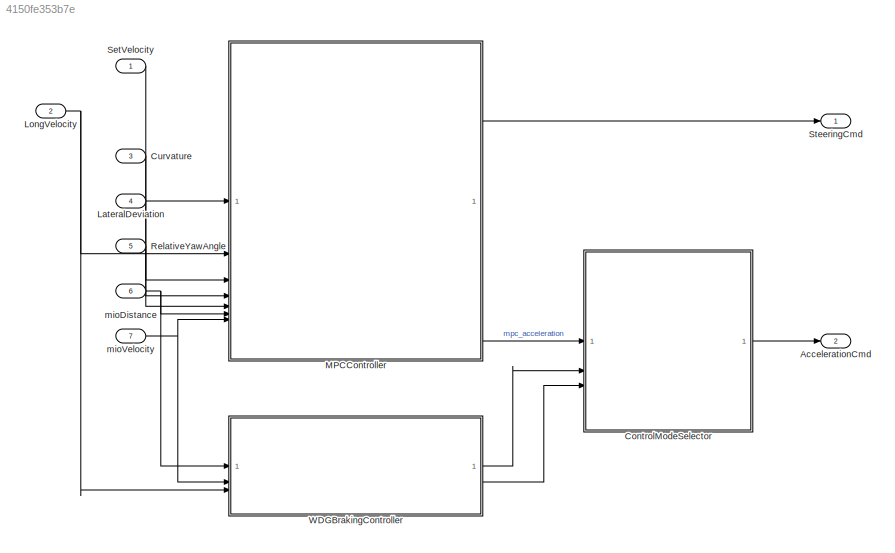
MODEL slx_4150fe353b7e
KIND model
CONFIG AbsTol = auto
CONFIG EnableMultiTasking = on
CONFIG FixedStep = auto
CONFIG MaxStep = auto
CONFIG MinStep = auto
CONFIG RelTol = 1e-3
CONFIG SampleTimeConstraint = Unconstrained
CONFIG SolverName = FixedStepDiscrete
CONFIG StartTime = 0.0
CONFIG StopTime = 10.0
BLOCK [Outport] AccelerationCmd
  Port = 2
BLOCK [ModelReference] ControlModeSelector
  ModelNameDialog = ControllerModeSelector
  ModelReferenceVersion = 8.0
BLOCK [Inport] Curvature
  Port = 3
BLOCK [Inport] LateralDeviation
  Port = 4
BLOCK [Inport] LongVelocity
  Port = 2
BLOCK [ModelReference] MPCController
  ModelNameDialog = MPCController
  ModelReferenceVersion = 8.0
BLOCK [Inport] RelativeYawAngle
  Port = 5
BLOCK [Inport] SetVelocity
BLOCK [Outport] SteeringCmd
BLOCK [ModelReference] WDGBrakingController
  ModelNameDialog = WDGBrakingController
  ModelReferenceVersion = 8.0
  PortSchema = {"entries":[{"content":{"sides":[{"content":{"connectorIds":["In2","In1","In3"]},"type":"ConnectorPlacement.EquallySpacedRectSide","uuid":"57705aa4-366f-4978-8b4b-15f74a9aab94"},{"content":{"connectorIds":["Out1","Out2"],"side":"RIGHT"},"type":"ConnectorPlacement.EquallySpacedRectSide","uuid":"9c18fe49-6c00-4be7-8985-e5ee85291c64"},{"content":{"connectorIds":[],"side":"TOP"},"type":"ConnectorPlace...<+403ch>
BLOCK [Inport] mioDistance
  Port = 6
BLOCK [Inport] mioVelocity
  Port = 7
LINE ControlModeSelector:1 -> AccelerationCmd:1
LINE Curvature:1 -> MPCController:3
LINE LateralDeviation:1 -> MPCController:4
NET LongVelocity:1 -> MPCController:2, WDGBrakingController:3
LINE MPCController:1 -> SteeringCmd:1
LINE MPCController:2 -> ControlModeSelector:1
LINE RelativeYawAngle:1 -> MPCController:5
LINE SetVelocity:1 -> MPCController:1
LINE WDGBrakingController:1 -> ControlModeSelector:2
LINE WDGBrakingController:2 -> ControlModeSelector:3
NET mioDistance:1 -> MPCController:6, WDGBrakingController:1
NET mioVelocity:1 -> MPCController:7, WDGBrakingController:2
note: NET lines group one-source signal fan-out (src -> all destinations, sorted); 1:1 wires keep LINE
